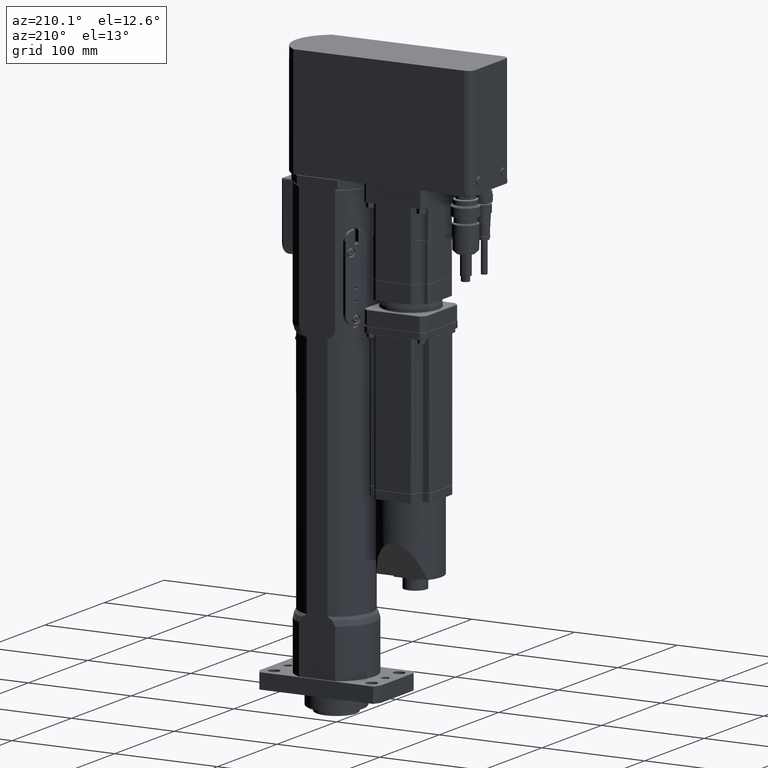
[diagram: clean part render]
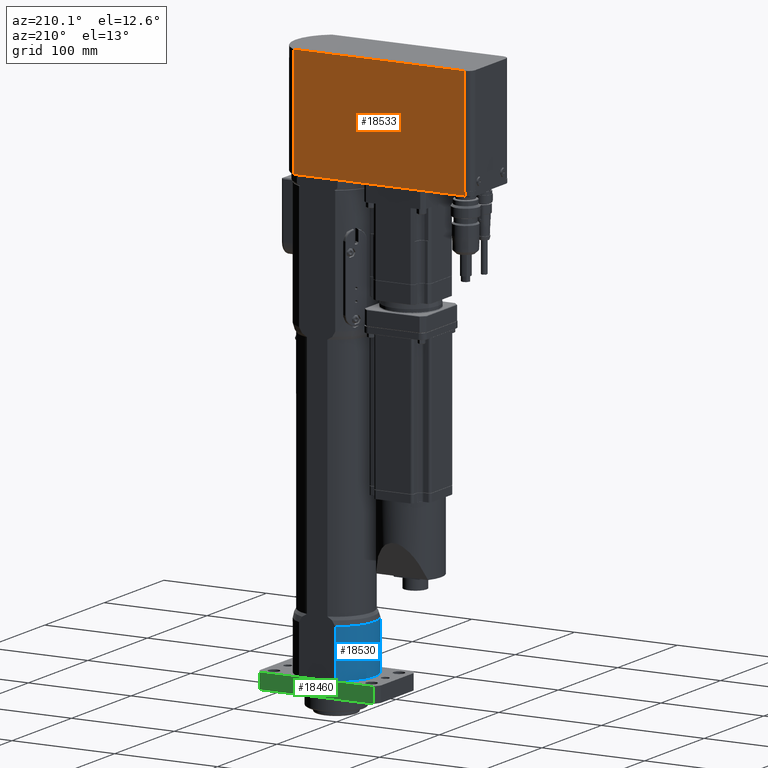
[diagram: same view with three faces highlighted in distinct colors, each labeled with its STEP entity id]
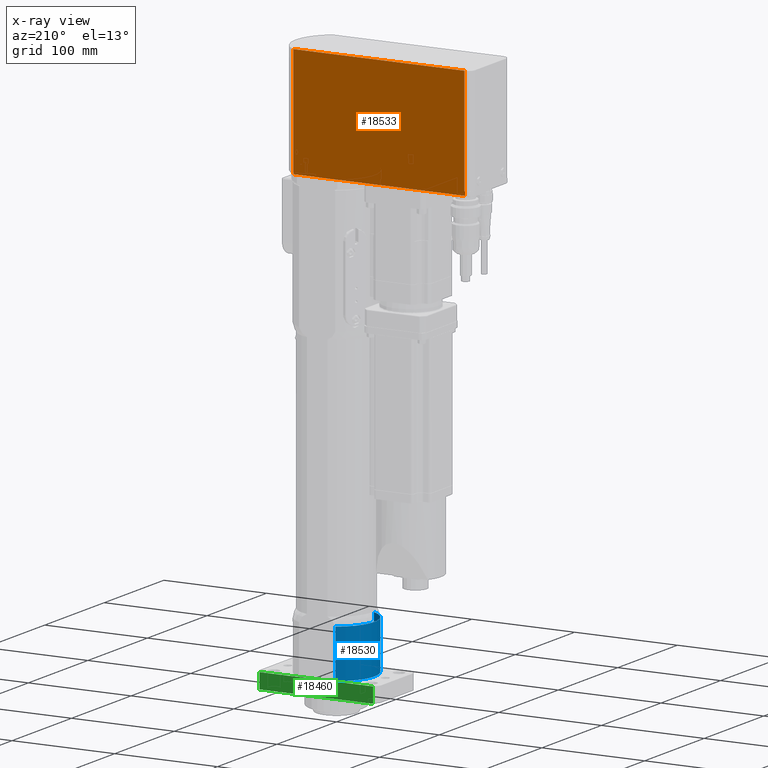
[diagram: x-ray of the same camera — body ghosted, the three highlighted faces saturated]
A machine part, auxiliary view with three faces highlighted in distinct colors.
The next image is the same camera in x-ray (body ghosted, the three faces saturated) — at least one of them is partly hidden behind the body in this view.
Their STEP definitions:

[orange] entity #18533 — the highlighted planar face has unit normal (0, 1, 0).
#3622=FACE_OUTER_BOUND('',#4857,.T.);
#4857=EDGE_LOOP('',(#14683,#14684,#14685,#14686,#14687,#14688));
#6245=LINE('',#32242,#7558);
#6247=LINE('',#32249,#7560);
#6248=LINE('',#32250,#7561);
#6249=LINE('',#32252,#7562);
#6250=LINE('',#32254,#7563);
#6251=LINE('',#32255,#7564);
#7558=VECTOR('',#23486,0.600000000000023);
#7560=VECTOR('',#23492,167.318447632722);
#7561=VECTOR('',#23493,3.99999999999999);
#7562=VECTOR('',#23494,104.);
#7563=VECTOR('',#23495,166.718447632722);
#7564=VECTOR('',#23496,108.);
#9057=VERTEX_POINT('',#32239);
#9058=VERTEX_POINT('',#32241);
#9060=VERTEX_POINT('',#32247);
#9061=VERTEX_POINT('',#32248);
#9062=VERTEX_POINT('',#32251);
#9063=VERTEX_POINT('',#32253);
#11081=EDGE_CURVE('',#9057,#9058,#6245,.T.);
#11084=EDGE_CURVE('',#9060,#9061,#6247,.T.);
#11085=EDGE_CURVE('',#9061,#9058,#6248,.T.);
#11086=EDGE_CURVE('',#9057,#9062,#6249,.T.);
#11087=EDGE_CURVE('',#9063,#9062,#6250,.T.);
#11088=EDGE_CURVE('',#9060,#9063,#6251,.T.);
#14683=ORIENTED_EDGE('',*,*,#11084,.T.);
#14684=ORIENTED_EDGE('',*,*,#11085,.T.);
#14685=ORIENTED_EDGE('',*,*,#11081,.F.);
#14686=ORIENTED_EDGE('',*,*,#11086,.T.);
#14687=ORIENTED_EDGE('',*,*,#11087,.F.);
#14688=ORIENTED_EDGE('',*,*,#11088,.F.);
#17770=PLANE('',#19997);
#18533=ADVANCED_FACE('',(#3622),#17770,.T.);
#19997=AXIS2_PLACEMENT_3D('',#32246,#23490,#23491);
#23486=DIRECTION('',(-1.,0.,0.));
#23490=DIRECTION('center_axis',(0.,1.,0.));
#23491=DIRECTION('ref_axis',(-1.,0.,0.));
#23492=DIRECTION('',(-1.,0.,0.));
#23493=DIRECTION('',(0.,0.,1.));
#23494=DIRECTION('',(0.,0.,1.));
#23495=DIRECTION('',(-1.,-2.70123244266842E-16,0.));
#23496=DIRECTION('',(0.,0.,1.));
#32239=CARTESIAN_POINT('',(-143.4,32.4999999999999,466.));
#32241=CARTESIAN_POINT('',(-144.,32.5,466.));
#32242=CARTESIAN_POINT('',(40.,32.5,466.));
#32246=CARTESIAN_POINT('Origin',(23.318447632722,32.5,462.));
#32247=CARTESIAN_POINT('',(23.318447632722,32.5,462.));
#32248=CARTESIAN_POINT('',(-144.,32.5,462.));
#32249=CARTESIAN_POINT('',(40.,32.5,462.));
#32250=CARTESIAN_POINT('',(-144.,32.5,462.));
#32251=CARTESIAN_POINT('',(-143.4,32.4999999999999,570.));
#32252=CARTESIAN_POINT('',(-143.4,32.4999999999999,466.));
#32253=CARTESIAN_POINT('',(23.318447632722,32.5,570.));
#32254=CARTESIAN_POINT('',(23.318447632722,32.5,570.));
#32255=CARTESIAN_POINT('',(23.318447632722,32.5,462.));

[blue] entity #18530 — the highlighted cylindrical surface (partial cylindrical patch) has radius 37 mm, axis along (0, 0, 1).
#2032=CIRCLE('',#19907,37.);
#2061=CIRCLE('',#19992,37.);
#2736=CYLINDRICAL_SURFACE('',#19991,37.);
#3619=FACE_OUTER_BOUND('',#4854,.T.);
#4854=EDGE_LOOP('',(#14671,#14672,#14673,#14674));
#6231=LINE('',#32153,#7544);
#6244=LINE('',#32233,#7557);
#7544=VECTOR('',#23454,47.1243556529821);
#7557=VECTOR('',#23475,47.1243556529821);
#8968=VERTEX_POINT('',#31754);
#8969=VERTEX_POINT('',#31756);
#9040=VERTEX_POINT('',#32140);
#9049=VERTEX_POINT('',#32203);
#10945=EDGE_CURVE('',#8968,#8969,#2032,.T.);
#11057=EDGE_CURVE('',#8968,#9040,#6231,.T.);
#11078=EDGE_CURVE('',#9049,#8969,#6244,.T.);
#11079=EDGE_CURVE('',#9049,#9040,#2061,.T.);
#14671=ORIENTED_EDGE('',*,*,#11079,.F.);
#14672=ORIENTED_EDGE('',*,*,#11078,.T.);
#14673=ORIENTED_EDGE('',*,*,#10945,.F.);
#14674=ORIENTED_EDGE('',*,*,#11057,.T.);
#18530=ADVANCED_FACE('',(#3619),#2736,.T.);
#19907=AXIS2_PLACEMENT_3D('',#31757,#23231,#23232);
#19991=AXIS2_PLACEMENT_3D('',#32234,#23476,#23477);
#19992=AXIS2_PLACEMENT_3D('',#32235,#23478,#23479);
#23231=DIRECTION('center_axis',(0.,0.,-1.));
#23232=DIRECTION('ref_axis',(-1.,0.,0.));
#23454=DIRECTION('',(0.,0.,1.));
#23475=DIRECTION('',(0.,0.,-1.));
#23476=DIRECTION('center_axis',(0.,0.,1.));
#23477=DIRECTION('ref_axis',(-1.,0.,0.));
#23478=DIRECTION('center_axis',(0.,0.,1.));
#23479=DIRECTION('ref_axis',(-1.,-9.99200722162641E-16,0.));
#31754=CARTESIAN_POINT('',(-17.6847391838273,-32.5,29.));
#31756=CARTESIAN_POINT('',(-17.6847391838274,32.5,29.));
#31757=CARTESIAN_POINT('Origin',(0.,0.,29.));
#32140=CARTESIAN_POINT('',(-17.6847391838274,-32.5,76.1243556529821));
#32153=CARTESIAN_POINT('',(-17.6847391838274,-32.5,29.));
#32203=CARTESIAN_POINT('',(-17.6847391838274,32.5,76.1243556529821));
#32233=CARTESIAN_POINT('',(-17.6847391838274,32.5,29.));
#32234=CARTESIAN_POINT('Origin',(0.,0.,29.));
#32235=CARTESIAN_POINT('Origin',(0.,0.,76.1243556529821));

[green] entity #18460 — the highlighted planar face has unit normal (0, 1, 0).
#3549=FACE_OUTER_BOUND('',#4749,.T.);
#4749=EDGE_LOOP('',(#14284,#14285,#14286,#14287));
#6148=LINE('',#31526,#7461);
#6149=LINE('',#31530,#7462);
#6150=LINE('',#31532,#7463);
#6151=LINE('',#31533,#7464);
#7461=VECTOR('',#23111,15.);
#7462=VECTOR('',#23116,110.797111875716);
#7463=VECTOR('',#23117,15.);
#7464=VECTOR('',#23118,110.797111875716);
#8911=VERTEX_POINT('',#31523);
#8912=VERTEX_POINT('',#31525);
#8913=VERTEX_POINT('',#31529);
#8914=VERTEX_POINT('',#31531);
#10878=EDGE_CURVE('',#8911,#8912,#6148,.T.);
#10880=EDGE_CURVE('',#8911,#8913,#6149,.T.);
#10881=EDGE_CURVE('',#8913,#8914,#6150,.T.);
#10882=EDGE_CURVE('',#8912,#8914,#6151,.T.);
#14284=ORIENTED_EDGE('',*,*,#10880,.T.);
#14285=ORIENTED_EDGE('',*,*,#10881,.T.);
#14286=ORIENTED_EDGE('',*,*,#10882,.F.);
#14287=ORIENTED_EDGE('',*,*,#10878,.F.);
#17739=PLANE('',#19858);
#18460=ADVANCED_FACE('',(#3549),#17739,.T.);
#19858=AXIS2_PLACEMENT_3D('',#31528,#23114,#23115);
#23111=DIRECTION('',(0.,0.,1.));
#23114=DIRECTION('center_axis',(7.52693576017055E-17,1.,0.));
#23115=DIRECTION('ref_axis',(-1.,0.,0.));
#23116=DIRECTION('',(-1.,7.52693576017055E-17,0.));
#23117=DIRECTION('',(0.,0.,1.));
#23118=DIRECTION('',(-1.,7.52693576017055E-17,0.));
#31523=CARTESIAN_POINT('',(55.3985559378582,34.,14.));
#31525=CARTESIAN_POINT('',(55.3985559378582,34.,29.));
#31526=CARTESIAN_POINT('',(55.3985559378582,34.,14.));
#31528=CARTESIAN_POINT('Origin',(55.3985559378582,34.,14.));
#31529=CARTESIAN_POINT('',(-55.3985559378582,34.,14.));
#31530=CARTESIAN_POINT('',(59.,34.,14.));
#31531=CARTESIAN_POINT('',(-55.3985559378582,34.,29.));
#31532=CARTESIAN_POINT('',(-55.3985559378582,34.,14.));
#31533=CARTESIAN_POINT('',(59.,34.,29.));